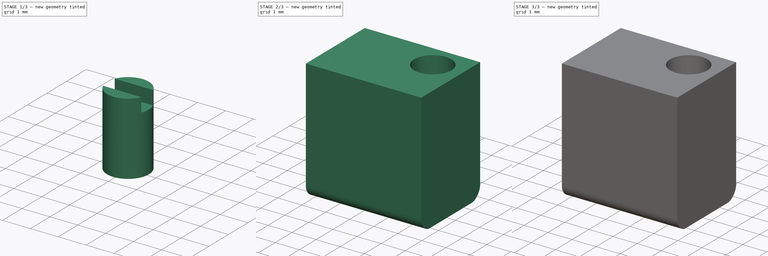
[diagram: build sequence overview — one tinted view per stage of 3, left to right]
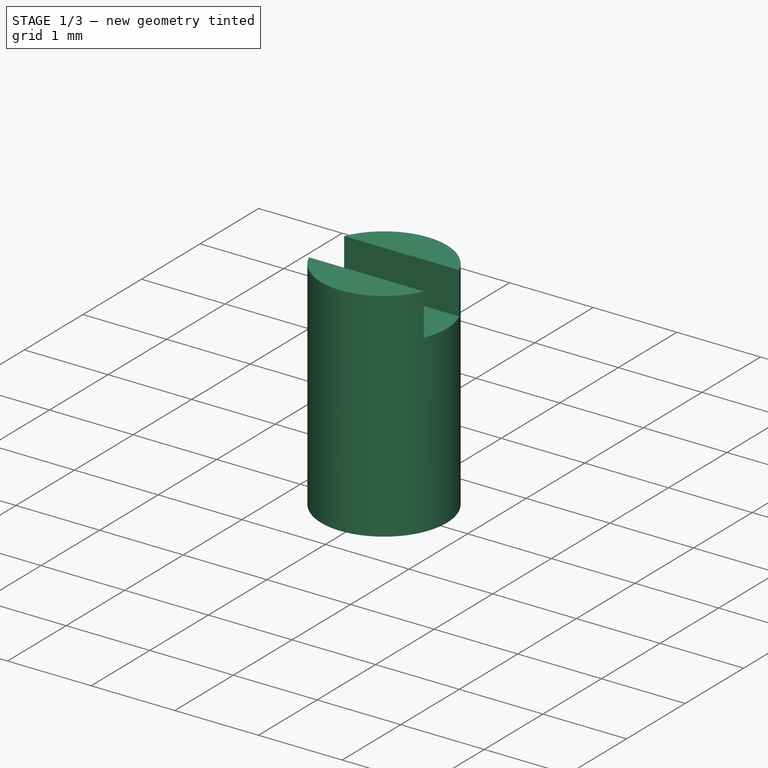
[diagram: stage 1 of 3 — iso view after this stage's code; geometry added in this stage tinted green]
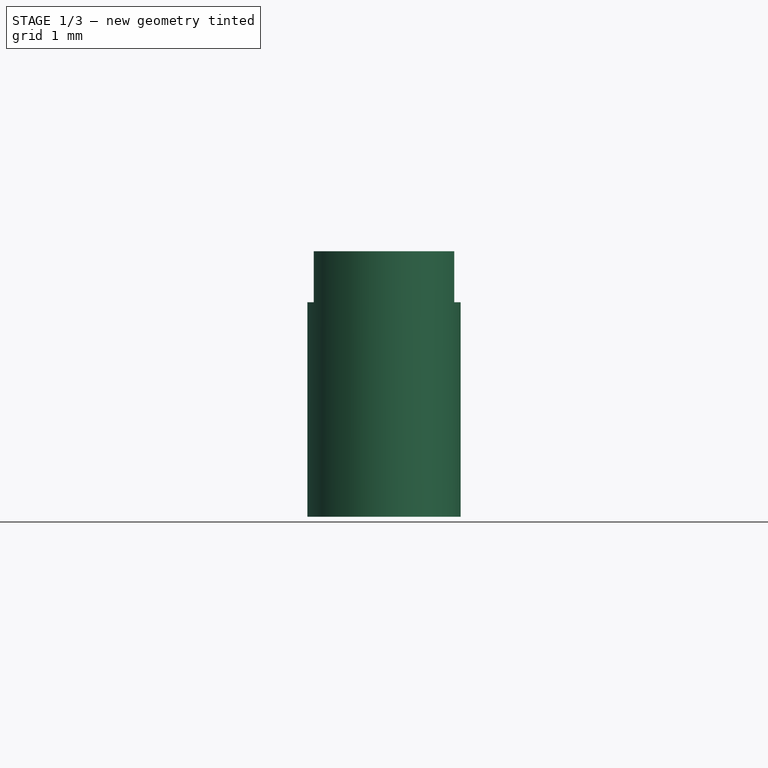
[diagram: stage 1 of 3 — front view after this stage's code; geometry added in this stage tinted green]
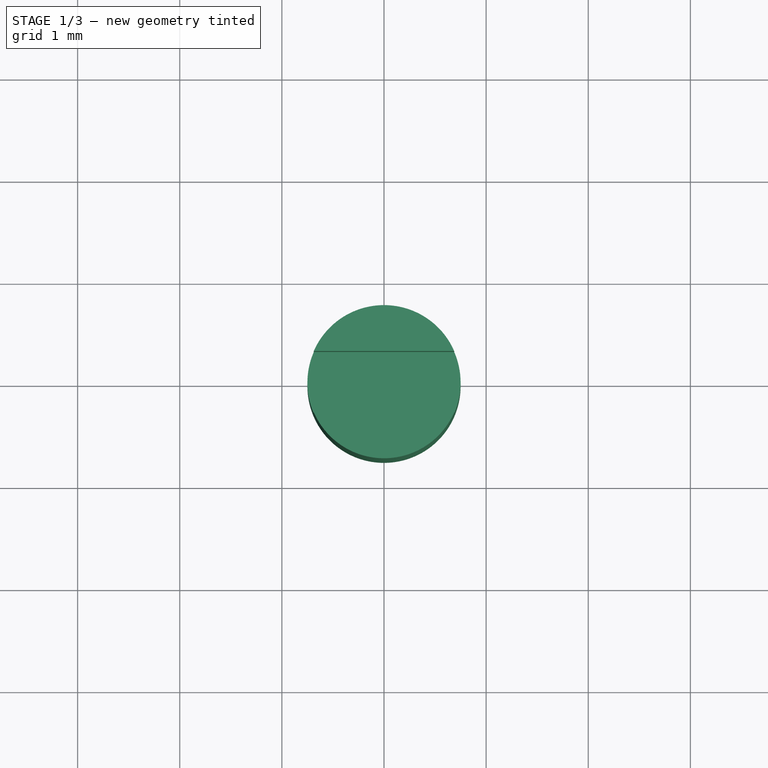
[diagram: stage 1 of 3 — top view after this stage's code; geometry added in this stage tinted green]
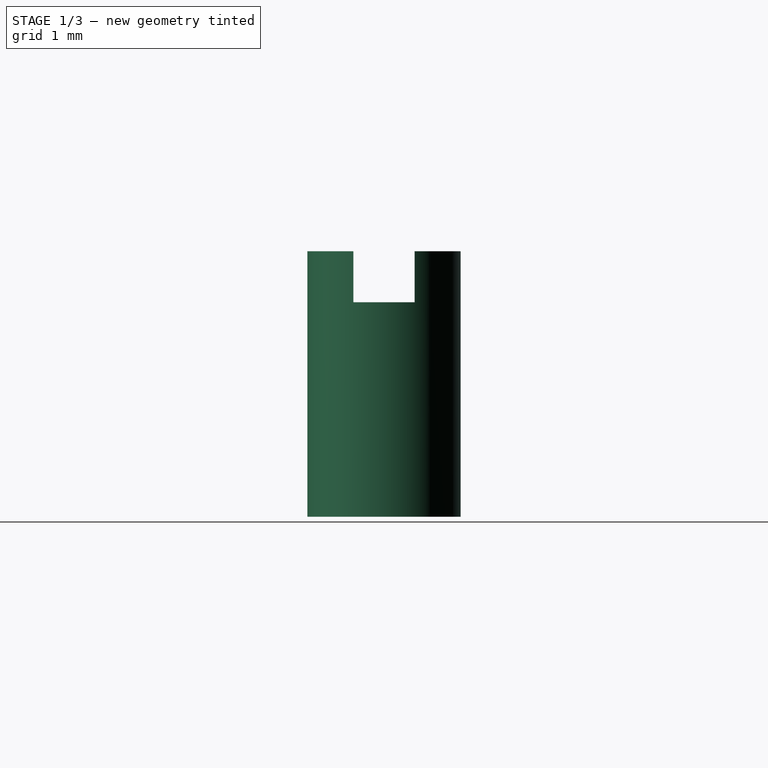
[diagram: stage 1 of 3 — right view after this stage's code; geometry added in this stage tinted green]
FCSTD DOCUMENT  (FreeCAD 0.19R24291 (Git))
Label: bourns-3214W-trimpot-trimming-potentiometer
License: All rights reserved
LicenseURL: http://en.wikipedia.org/wiki/All_rights_reserved
objects: Sketcher::SketchObject×7, PartDesign::Pad×5, PartDesign::Body×5, PartDesign::Pocket×2, App::Part×1
note: 26 computed .brp shape members not serialized (recipe doc carries the construction recipe); baked Part::Feature solids carry a one-line shape summary decoded from their .brp

FEATURE [PartDesign::Body] Body003  label="body-3214W"
  Group = -> [Sketch003,Pad003,Sketch004,Pocket]
  Origin = -> Origin004
  Placement = pos=(-2.4,0,0.2) rot=(0,0,1;0rad)
  Tip = -> Pocket
FEATURE [Sketcher::SketchObject] Sketch005
  FullyConstrained = true
  MapMode = 5
  Support = -> [XY_Plane005]
  sketch-geometry (1):
    g0: Circle CenterX=0 CenterY=0 CenterZ=0 NormalX=0 NormalY=0 NormalZ=1 AngleXU=0 Radius=0.75
  constraints (2):
    c: Coincident(g0,g-1)
    c: Diameter(g0) = 1.5
FEATURE [PartDesign::Pad] Pad004
  Direction = (1,1,1)
  Length = 2.6
  Length2 = 100
  Profile = -> Sketch005
  Type = 0
FEATURE [Sketcher::SketchObject] Sketch006
  FullyConstrained = true
  MapMode = 5
  Placement = pos=(0,0,2.6) rot=(0,0,1;0rad)
  Support = -> [Pad004]
  sketch-geometry (4):
    g0: LineSegment StartX=-5 StartY=0.3 StartZ=0 EndX=5 EndY=0.3 EndZ=0
    g1: LineSegment StartX=5 StartY=0.3 StartZ=0 EndX=5 EndY=-0.3 EndZ=0
    g2: LineSegment StartX=5 StartY=-0.3 StartZ=0 EndX=-5 EndY=-0.3 EndZ=0
    g3: LineSegment StartX=-5 StartY=-0.3 StartZ=0 EndX=-5 EndY=0.3 EndZ=0
  constraints (10):
    c: Coincident(g0,g1)
    c: Coincident(g1,g2)
    c: Coincident(g2,g3)
    c: Coincident(g3,g0)
    c: Horizontal(g2)
    c: Vertical(g1)
    c: Symmetric(g0,g2,g-1)
    c: Symmetric(g0,g0,g-2)
    c: DistanceY(g1,g0) = 0.6
    c: DistanceX(g2,g1) = 10
FEATURE [PartDesign::Pocket] Pocket001
  BaseFeature = -> Pad004
  Length = 0.5
  Length2 = 100
  Profile = -> Sketch006
  Type = 0
FEATURE [PartDesign::Body] Body004  label="adjust-screw"
  Group = -> [Sketch005,Pad004,Sketch006,Pocket001]
  Origin = -> Origin005
  Placement = pos=(1.2,0.65,3.2) rot=(0,0,1;0rad)
  Tip = -> Pocket001
FEATURE [App::Part] Part  label="assembly"
  Group = -> [Body,Body002,Body001,Body003,Body004]
  Origin = -> Origin
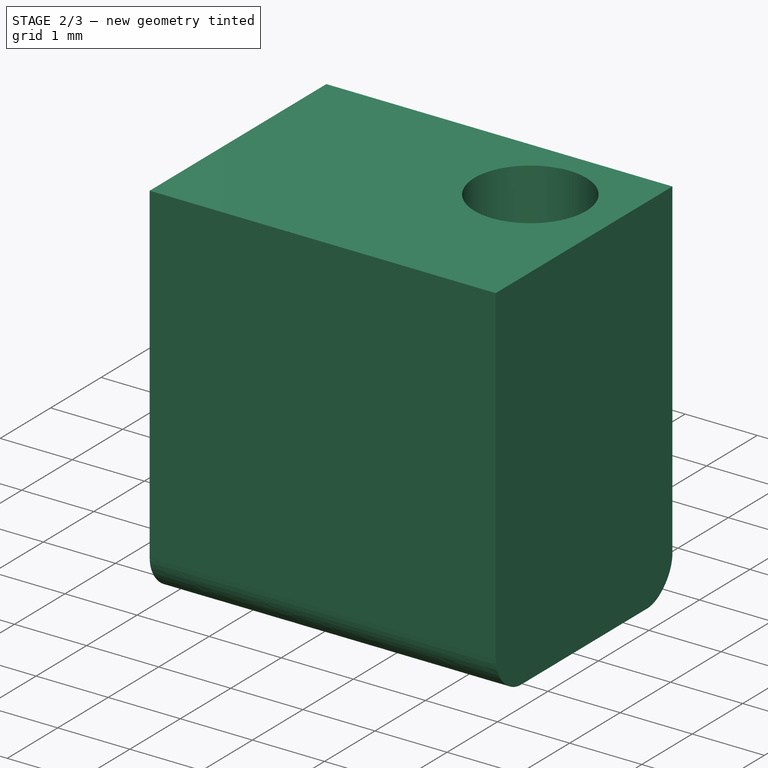
[diagram: stage 2 of 3 — iso view after this stage's code; geometry added in this stage tinted green]
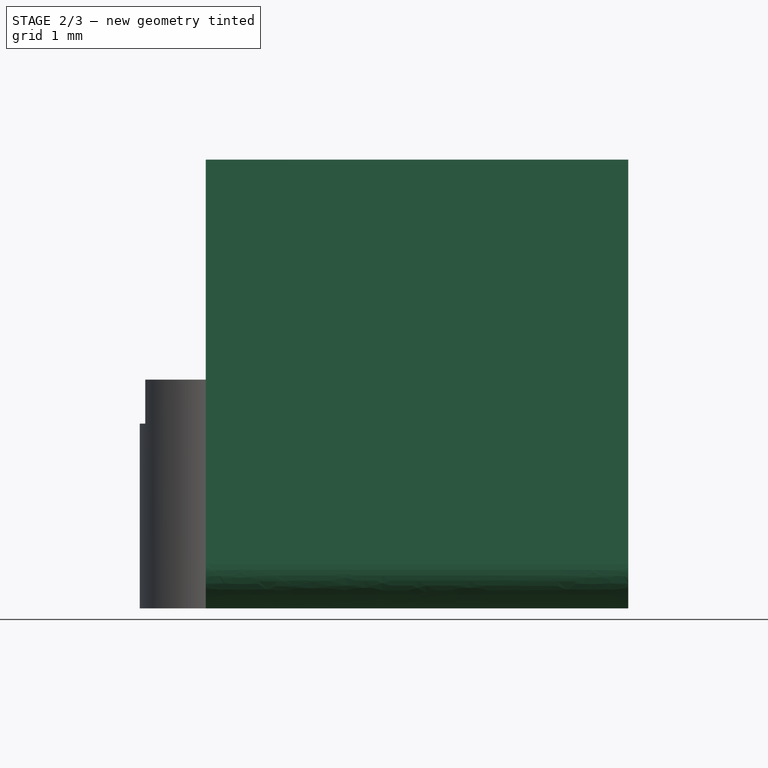
[diagram: stage 2 of 3 — front view after this stage's code; geometry added in this stage tinted green]
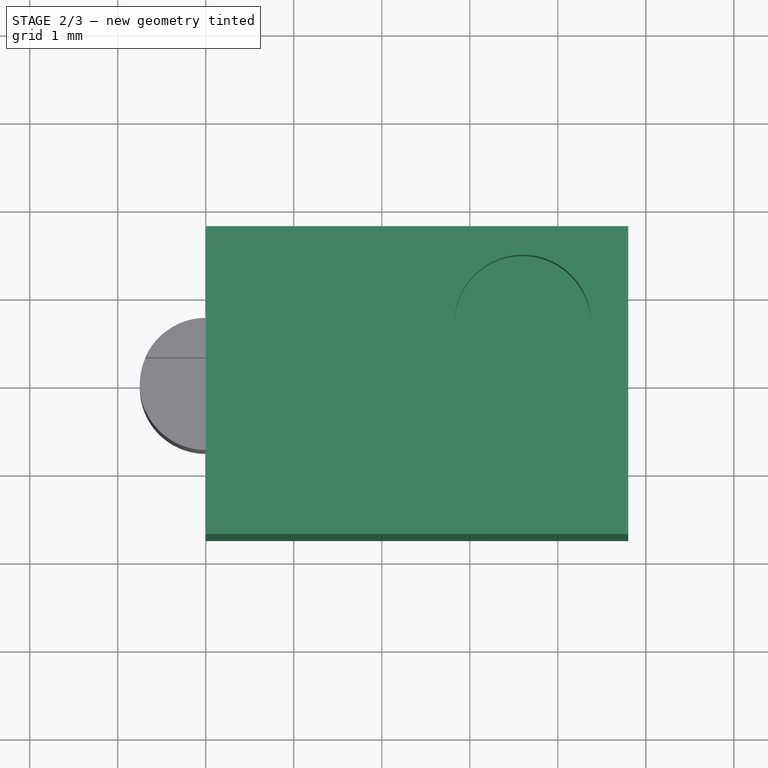
[diagram: stage 2 of 3 — top view after this stage's code; geometry added in this stage tinted green]
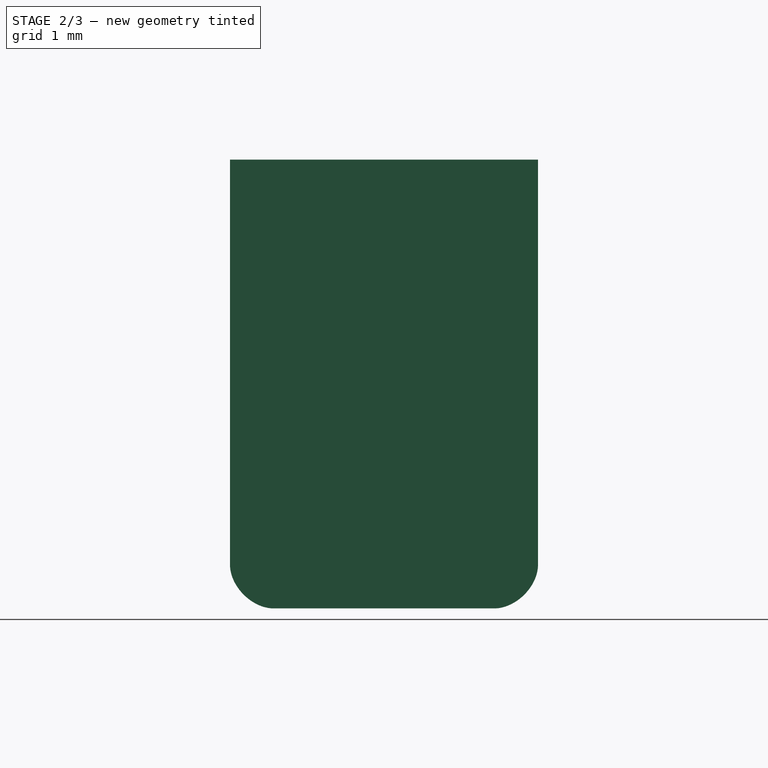
[diagram: stage 2 of 3 — right view after this stage's code; geometry added in this stage tinted green]
FEATURE [PartDesign::Body] Body001  label="contact-2"
  Group = -> [Pad001,Sketch001]
  Origin = -> Origin002
  Placement = pos=(0.65,0.95,0) rot=(0,0,1;3.14159rad)
  Tip = -> Pad001
FEATURE [Sketcher::SketchObject] Sketch002
  FullyConstrained = false
  MapMode = 5
  Placement = pos=(0,0,0) rot=(0.57735,0.57735,0.57735;2.0944rad)
  Support = -> [YZ_Plane003]
  sketch-geometry (36):
    g0: LineSegment StartX=-0.75 StartY=0.1 StartZ=0 EndX=0 EndY=0.1 EndZ=0
    g1: LineSegment StartX=0 StartY=0.1 StartZ=0 EndX=0 EndY=0 EndZ=0
    g2: LineSegment StartX=0 StartY=0 StartZ=0 EndX=-0.75 EndY=0 EndZ=0
    g3-g6: Circle x4 (B-spline internal-alignment scaffolding for g7; pole/knot coordinates omitted)
    g7: BSplineCurve PolesCount=4 KnotsCount=2 Degree=3 IsPeriodic=0
    g8: GeomPoint X=-0.75 Y=0 Z=0
    g9: GeomPoint X=-1 Y=0.25 Z=0
    g10: LineSegment StartX=-1 StartY=0.25 StartZ=0 EndX=-1 EndY=0.65 EndZ=0
    g11-g14: Circle x4 (B-spline internal-alignment scaffolding for g15; pole/knot coordinates omitted)
    g15: BSplineCurve PolesCount=4 KnotsCount=2 Degree=3 IsPeriodic=0
    g16: GeomPoint X=-0.75 Y=0.1 Z=0
    g17: GeomPoint X=-0.9 Y=0.25 Z=0
    g18: LineSegment StartX=-0.9 StartY=0.25 StartZ=0 EndX=-0.9 EndY=0.65 EndZ=0
    g19-g22: Circle x4 (B-spline internal-alignment scaffolding for g23; pole/knot coordinates omitted)
    g23: BSplineCurve PolesCount=4 KnotsCount=2 Degree=3 IsPeriodic=0
    g24: GeomPoint X=-0.9 Y=0.65 Z=0
    g25: GeomPoint X=-0.85 Y=0.7 Z=0
    g26: Circle CenterX=-1 CenterY=0.65 CenterZ=0 NormalX=0 NormalY=0 NormalZ=1 AngleXU=0 Radius=1
    g27: Circle CenterX=-1 CenterY=0.725 CenterZ=0 NormalX=0 NormalY=0 NormalZ=1 AngleXU=0 Radius=1
    g28: Circle CenterX=-0.925 CenterY=0.8 CenterZ=0 NormalX=0 NormalY=0 NormalZ=1 AngleXU=0 Radius=1
    g29: Circle CenterX=-0.333611 CenterY=0.651223 CenterZ=0 NormalX=0 NormalY=0 NormalZ=1 AngleXU=0 Radius=1
    g30: BSplineCurve PolesCount=4 KnotsCount=2 Degree=3 IsPeriodic=0
    g31: GeomPoint X=-1 Y=0.65 Z=0
    g32: GeomPoint X=-0.85 Y=0.8 Z=0
    g33: LineSegment StartX=-0.85 StartY=0.8 StartZ=0 EndX=-0.6 EndY=0.8 EndZ=0
    g34: LineSegment StartX=-0.6 StartY=0.8 StartZ=0 EndX=-0.6 EndY=0.7 EndZ=0
    g35: LineSegment StartX=-0.6 StartY=0.7 StartZ=0 EndX=-0.85 EndY=0.7 EndZ=0
  constraints (81):
    c: Coincident(g1,g0)
    c: Coincident(g2,g1)
    c: Coincident(g7,g2)
    c: Weight(g3) = 1
    c: Equal(g3,g4)
    c: Equal(g3,g5)
    c: Equal(g3,g6)
    c: InternalAlignment(g3-g6 -> g7) x4
    c: InternalAlignment(g8,g7)
    c: InternalAlignment(g9,g7)
    c: Coincident(g10,g7)
    c: Vertical(g10)
    c: Coincident(g15,g0)
    c: Weight(g11) = 1
    c: Equal(g11,g12)
    c: Equal(g11,g13)
    c: Equal(g11,g14)
    c: InternalAlignment(g11-g14 -> g15) x4
    c: InternalAlignment(g16,g15)
    c: InternalAlignment(g17,g15)
    c: Coincident(g18,g15)
    c: Vertical(g18)
    c: Coincident(g23,g18)
    c: Weight(g19) = 1
    c: Equal(g19,g20)
    c: Equal(g19,g21)
    c: Equal(g19,g22)
    c: InternalAlignment(g19-g22 -> g23) x4
    c: InternalAlignment(g24,g23)
    c: InternalAlignment(g25,g23)
    c: Coincident(g30,g10)
    c: Weight(g26) = 1
    c: Equal(g26,g27)
    c: Equal(g26,g28)
    c: Equal(g26,g29)
    c: InternalAlignment(g26,g30)
    c: InternalAlignment(g27,g30)
    c: InternalAlignment(g28,g30)
    c: InternalAlignment(g31,g30)
    c: InternalAlignment(g32,g30)
    c: Coincident(g33,g30)
    c: Coincident(g34,g33)
    c: Coincident(g35,g34)
    c: Coincident(g35,g23)
    c: DistanceX(g7,g15) = 0.1
    c: Horizontal(g0)
    c: Horizontal(g2)
    c: Vertical(g1)
    c: Horizontal(g33)
    c: Horizontal(g35)
    c: Vertical(g34)
    c: Distance(g33,g34) = 0.1
    c: Distance(g0,g1) = 0.1
    c: Coincident(g1,g-1)
    c: Horizontal(g4,g2)
    c: Vertical(g7,g5)
    c: Horizontal(g12,g0)
    c: Vertical(g13,g15)
    c: Vertical(g18,g20)
    c: Horizontal(g21,g23)
    c: Vertical(g27,g10)
    c: Horizontal(g28,g30)
    c: DistanceX(g7,g-1) = 1
    c: DistanceY(g-1,g33) = 0.8
    c: DistanceY(g-1,g7) = 0.25
    c: DistanceX(g7,g2) = 0.25
    c: Distance(g4,g2) = 0.125
    c: DistanceY(g5,g7) = 0.125
    c: Vertical(g0,g2)
    c: Horizontal(g15,g7)
    c: DistanceY(g13,g15) = 0.075
    c: DistanceX(g12,g0) = 0.075
    c: DistanceY(g10,g27) = 0.075
    c: Horizontal(g10,g18)
    c: DistanceY(g18,g20) = 0.025
    c: DistanceX(g21,g23) = 0.025
    c: DistanceX(g28,g30) = 0.075
    c: Vertical(g23,g30)
    c: DistanceX(g10,g30) = 0.15
    c: DistanceY(g10,g30) = 0.15
    c: DistanceX(g34,g-1) = 0.6
FEATURE [PartDesign::Pad] Pad002
  Direction = (1,1,1)
  Length = 0.8
  Length2 = 100
  Placement = pos=(0,0,0) rot=(0.57735,0.57735,0.57735;2.0944rad)
  Profile = -> Sketch002
  Type = 0
FEATURE [PartDesign::Body] Body002  label="contact-3"
  Group = -> [Pad002,Sketch002]
  Origin = -> Origin003
  Placement = pos=(0.85,-0.95,0) rot=(0,0,1;0rad)
  Tip = -> Pad002
FEATURE [Sketcher::SketchObject] Sketch003
  FullyConstrained = false
  MapMode = 5
  Placement = pos=(0,0,0) rot=(0.57735,0.57735,0.57735;2.0944rad)
  Support = -> [YZ_Plane004]
  sketch-geometry (14):
    g0: LineSegment StartX=-1.75 StartY=0.5 StartZ=0 EndX=-1.75 EndY=5.1 EndZ=0
    g1: LineSegment StartX=-1.75 StartY=5.1 StartZ=0 EndX=1.75 EndY=5.1 EndZ=0
    g2-g5: Circle x4 (B-spline internal-alignment scaffolding for g6; pole/knot coordinates omitted)
    g6: BSplineCurve PolesCount=4 KnotsCount=2 Degree=3 IsPeriodic=0
    g7-g10: Circle x4 (B-spline internal-alignment scaffolding for g11; pole/knot coordinates omitted)
    g11: BSplineCurve PolesCount=4 KnotsCount=2 Degree=3 IsPeriodic=0
    g12: LineSegment StartX=-1.25 StartY=0 StartZ=0 EndX=1.25 EndY=0 EndZ=0
    g13: LineSegment StartX=1.75 StartY=5.1 StartZ=0 EndX=1.75 EndY=0.5 EndZ=0
  constraints (33):
    c: Vertical(g0)
    c: Coincident(g1,g0)
    c: Horizontal(g1)
    c: Weight(g2) = 1
    c: Equal(g2,g3)
    c: Equal(g2,g4)
    c: Equal(g2,g5)
    c: InternalAlignment(g2-g5 -> g6) x4
    c: Coincident(g11,g0)
    c: Weight(g7) = 1
    c: Equal(g7,g8)
    c: Equal(g7,g9)
    c: Equal(g7,g10)
    c: InternalAlignment(g7-g10 -> g11) x4
    c: DistanceY(g11,g0) = 5.1
    c: Vertical(g6,g3)
    c: DistanceX(g0,g1) = 3.5
    c: DistanceY(g11,g0) = 0.5
    c: Horizontal(g0,g6)
    c: DistanceY(g6,g3) = -0.25
    c: DistanceY(g0,g8) = -0.25
    c: Vertical(g8,g0)
    c: DistanceX(g9,g11) = 0.25
    c: DistanceX(g11,g6) = 2.5
    c: Symmetric(g11,g6,g-2)
    c: DistanceX(g6,g4) = 0.25
    c: Coincident(g12,g11)
    c: Coincident(g12,g6)
    c: Coincident(g13,g1)
    c: Coincident(g13,g6)
    c: Vertical(g13)
    c: DistanceX(g0,g-1) = 1.75
    c: DistanceY(g11,g-1) = 0
FEATURE [PartDesign::Pad] Pad003
  Direction = (1,1,1)
  Length = 4.8
  Length2 = 100
  Placement = pos=(0,0,0) rot=(0.57735,0.57735,0.57735;2.0944rad)
  Profile = -> Sketch003
  Type = 0
FEATURE [Sketcher::SketchObject] Sketch004
  FullyConstrained = true
  MapMode = 5
  Placement = pos=(-2e-15,2.8e-15,5.1) rot=(0,0,-1;1.5708rad)
  Support = -> [Pad003]
  sketch-geometry (1):
    g0: Circle CenterX=-0.65 CenterY=3.6 CenterZ=0 NormalX=0 NormalY=0 NormalZ=1 AngleXU=0 Radius=0.775
  constraints (3):
    c: DistanceX(g-1,g0) = -0.65
    c: DistanceY(g-1,g0) = 3.6
    c: Diameter(g0) = 1.55
FEATURE [PartDesign::Pocket] Pocket
  BaseFeature = -> Pad003
  Length = 1
  Length2 = 100
  Placement = pos=(0,0,0) rot=(0.57735,0.57735,0.57735;2.0944rad)
  Profile = -> Sketch004
  Type = 0
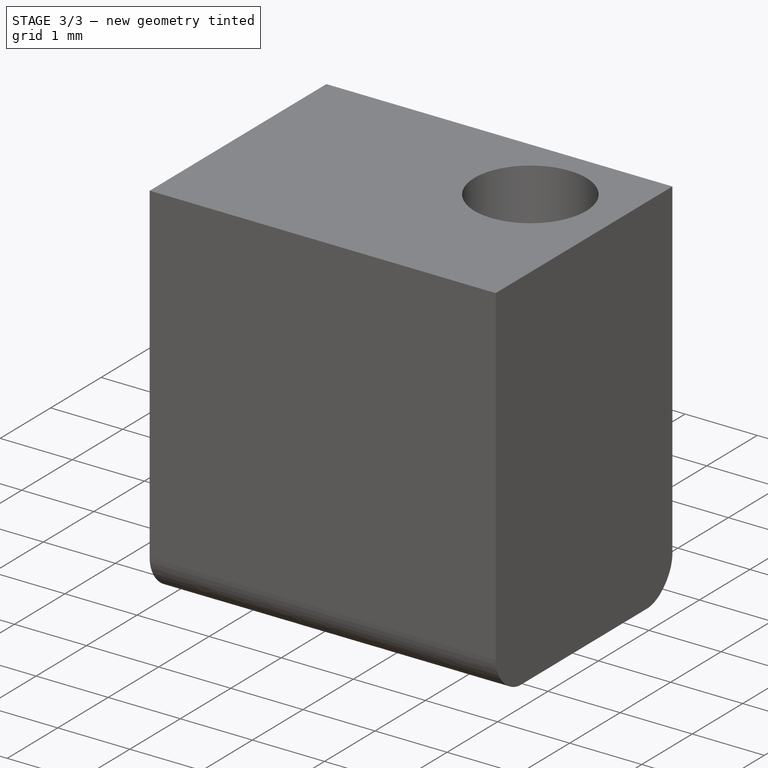
[diagram: stage 3 of 3 — iso view after this stage's code; geometry added in this stage tinted green]
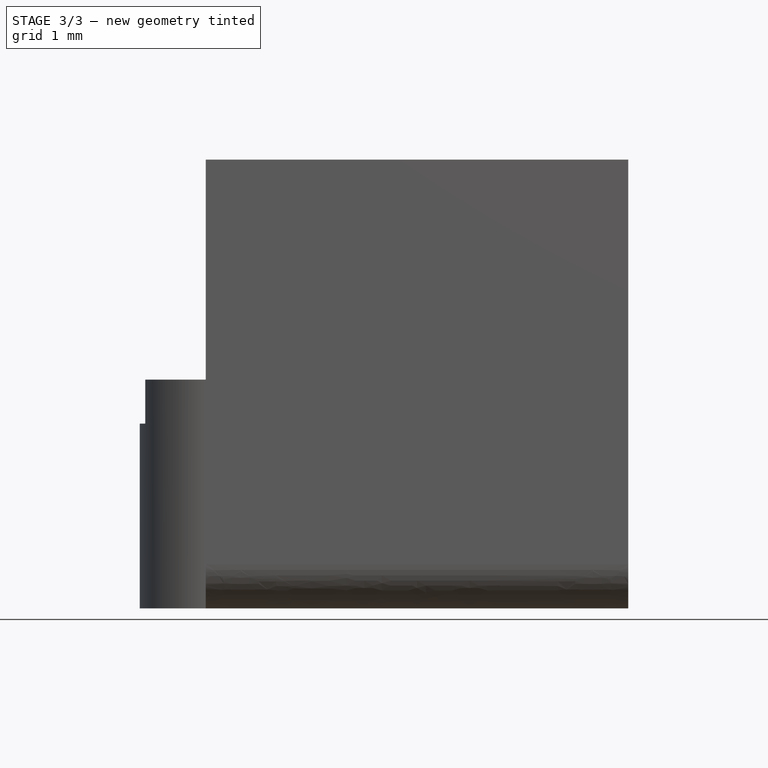
[diagram: stage 3 of 3 — front view after this stage's code; geometry added in this stage tinted green]
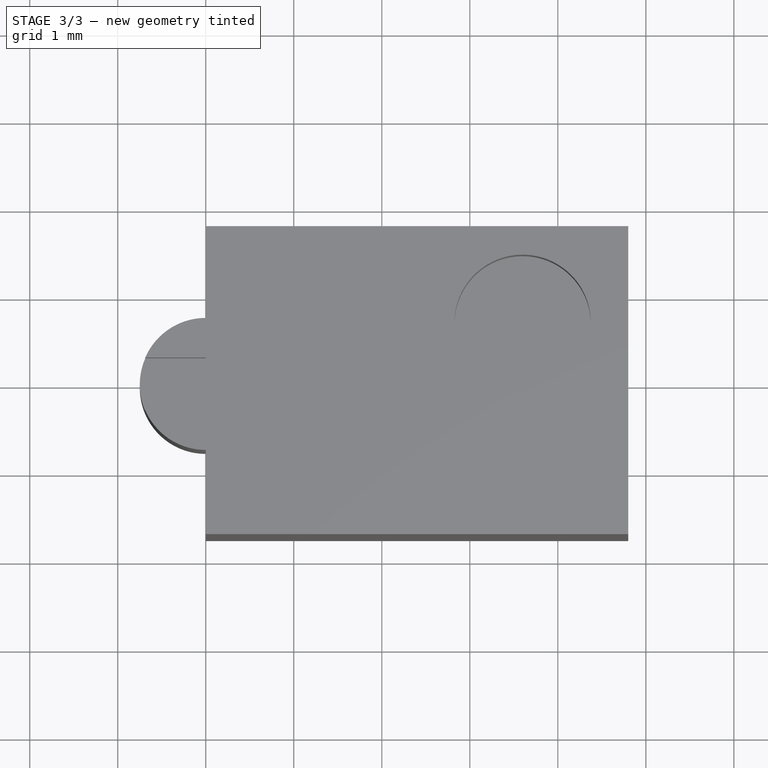
[diagram: stage 3 of 3 — top view after this stage's code; geometry added in this stage tinted green]
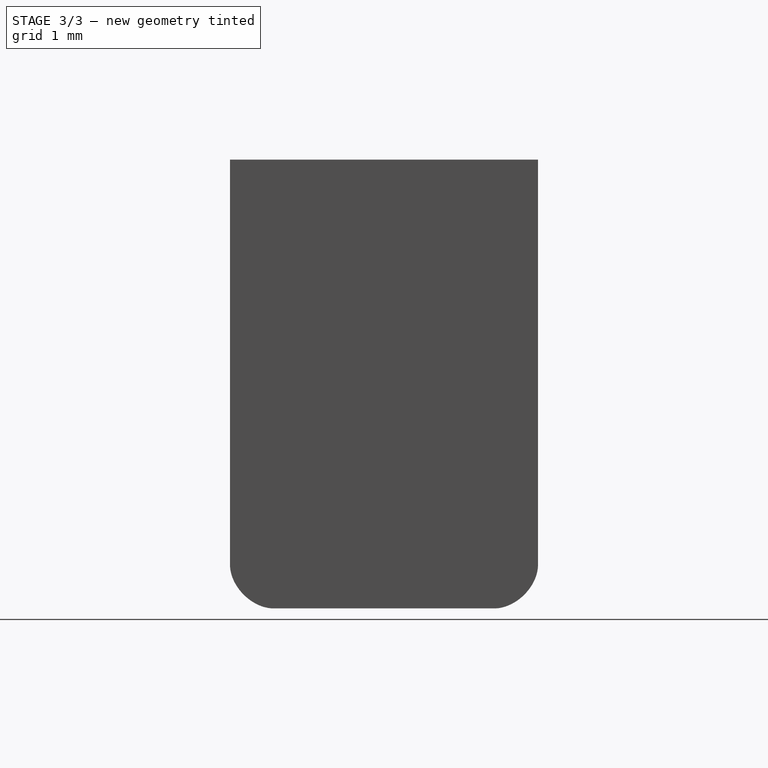
[diagram: stage 3 of 3 — right view after this stage's code; geometry added in this stage tinted green]
FEATURE [Sketcher::SketchObject] Sketch
  FullyConstrained = false
  MapMode = 5
  Placement = pos=(0,0,0) rot=(0.57735,0.57735,0.57735;2.0944rad)
  Support = -> [YZ_Plane001]
  sketch-geometry (36):
    g0: LineSegment StartX=-0.75 StartY=0.1 StartZ=0 EndX=0 EndY=0.1 EndZ=0
    g1: LineSegment StartX=0 StartY=0.1 StartZ=0 EndX=0 EndY=0 EndZ=0
    g2: LineSegment StartX=0 StartY=0 StartZ=0 EndX=-0.75 EndY=0 EndZ=0
    g3-g6: Circle x4 (B-spline internal-alignment scaffolding for g7; pole/knot coordinates omitted)
    g7: BSplineCurve PolesCount=4 KnotsCount=2 Degree=3 IsPeriodic=0
    g8: GeomPoint X=-0.75 Y=0 Z=0
    g9: GeomPoint X=-1 Y=0.25 Z=0
    g10: LineSegment StartX=-1 StartY=0.25 StartZ=0 EndX=-1 EndY=0.65 EndZ=0
    g11-g14: Circle x4 (B-spline internal-alignment scaffolding for g15; pole/knot coordinates omitted)
    g15: BSplineCurve PolesCount=4 KnotsCount=2 Degree=3 IsPeriodic=0
    g16: GeomPoint X=-0.75 Y=0.1 Z=0
    g17: GeomPoint X=-0.9 Y=0.25 Z=0
    g18: LineSegment StartX=-0.9 StartY=0.25 StartZ=0 EndX=-0.9 EndY=0.65 EndZ=0
    g19-g22: Circle x4 (B-spline internal-alignment scaffolding for g23; pole/knot coordinates omitted)
    g23: BSplineCurve PolesCount=4 KnotsCount=2 Degree=3 IsPeriodic=0
    g24: GeomPoint X=-0.9 Y=0.65 Z=0
    g25: GeomPoint X=-0.85 Y=0.7 Z=0
    g26: Circle CenterX=-1 CenterY=0.65 CenterZ=0 NormalX=0 NormalY=0 NormalZ=1 AngleXU=0 Radius=1
    g27: Circle CenterX=-1 CenterY=0.725 CenterZ=0 NormalX=0 NormalY=0 NormalZ=1 AngleXU=0 Radius=1
    g28: Circle CenterX=-0.925 CenterY=0.8 CenterZ=0 NormalX=0 NormalY=0 NormalZ=1 AngleXU=0 Radius=1
    g29: Circle CenterX=-0.333611 CenterY=0.651223 CenterZ=0 NormalX=0 NormalY=0 NormalZ=1 AngleXU=0 Radius=1
    g30: BSplineCurve PolesCount=4 KnotsCount=2 Degree=3 IsPeriodic=0
    g31: GeomPoint X=-1 Y=0.65 Z=0
    g32: GeomPoint X=-0.85 Y=0.8 Z=0
    g33: LineSegment StartX=-0.85 StartY=0.8 StartZ=0 EndX=-0.6 EndY=0.8 EndZ=0
    g34: LineSegment StartX=-0.6 StartY=0.8 StartZ=0 EndX=-0.6 EndY=0.7 EndZ=0
    g35: LineSegment StartX=-0.6 StartY=0.7 StartZ=0 EndX=-0.85 EndY=0.7 EndZ=0
  constraints (81):
    c: Coincident(g1,g0)
    c: Coincident(g2,g1)
    c: Coincident(g7,g2)
    c: Weight(g3) = 1
    c: Equal(g3,g4)
    c: Equal(g3,g5)
    c: Equal(g3,g6)
    c: InternalAlignment(g3-g6 -> g7) x4
    c: InternalAlignment(g8,g7)
    c: InternalAlignment(g9,g7)
    c: Coincident(g10,g7)
    c: Vertical(g10)
    c: Coincident(g15,g0)
    c: Weight(g11) = 1
    c: Equal(g11,g12)
    c: Equal(g11,g13)
    c: Equal(g11,g14)
    c: InternalAlignment(g11-g14 -> g15) x4
    c: InternalAlignment(g16,g15)
    c: InternalAlignment(g17,g15)
    c: Coincident(g18,g15)
    c: Vertical(g18)
    c: Coincident(g23,g18)
    c: Weight(g19) = 1
    c: Equal(g19,g20)
    c: Equal(g19,g21)
    c: Equal(g19,g22)
    c: InternalAlignment(g19-g22 -> g23) x4
    c: InternalAlignment(g24,g23)
    c: InternalAlignment(g25,g23)
    c: Coincident(g30,g10)
    c: Weight(g26) = 1
    c: Equal(g26,g27)
    c: Equal(g26,g28)
    c: Equal(g26,g29)
    c: InternalAlignment(g26,g30)
    c: InternalAlignment(g27,g30)
    c: InternalAlignment(g28,g30)
    c: InternalAlignment(g31,g30)
    c: InternalAlignment(g32,g30)
    c: Coincident(g33,g30)
    c: Coincident(g34,g33)
    c: Coincident(g35,g34)
    c: Coincident(g35,g23)
    c: DistanceX(g7,g15) = 0.1
    c: Horizontal(g0)
    c: Horizontal(g2)
    c: Vertical(g1)
    c: Horizontal(g33)
    c: Horizontal(g35)
    c: Vertical(g34)
    c: Distance(g33,g34) = 0.1
    c: Distance(g0,g1) = 0.1
    c: Coincident(g1,g-1)
    c: Horizontal(g4,g2)
    c: Vertical(g7,g5)
    c: Horizontal(g12,g0)
    c: Vertical(g13,g15)
    c: Vertical(g18,g20)
    c: Horizontal(g21,g23)
    c: Vertical(g27,g10)
    c: Horizontal(g28,g30)
    c: DistanceX(g7,g-1) = 1
    c: DistanceY(g-1,g33) = 0.8
    c: DistanceY(g-1,g7) = 0.25
    c: DistanceX(g7,g2) = 0.25
    c: Distance(g4,g2) = 0.125
    c: DistanceY(g5,g7) = 0.125
    c: Vertical(g0,g2)
    c: Horizontal(g15,g7)
    c: DistanceY(g13,g15) = 0.075
    c: DistanceX(g12,g0) = 0.075
    c: DistanceY(g10,g27) = 0.075
    c: Horizontal(g10,g18)
    c: DistanceY(g18,g20) = 0.025
    c: DistanceX(g21,g23) = 0.025
    c: DistanceX(g28,g30) = 0.075
    c: Vertical(g23,g30)
    c: DistanceX(g10,g30) = 0.15
    c: DistanceY(g10,g30) = 0.15
    c: DistanceX(g34,g-1) = 0.6
FEATURE [PartDesign::Pad] Pad
  Direction = (1,1,1)
  Length = 0.8
  Length2 = 100
  Placement = pos=(0,0,0) rot=(0.57735,0.57735,0.57735;2.0944rad)
  Profile = -> Sketch
  Type = 0
FEATURE [PartDesign::Body] Body  label="contact-1"
  Group = -> [Pad,Sketch]
  Origin = -> Origin001
  Placement = pos=(-1.65,-0.95,0) rot=(0,0,1;0rad)
  Tip = -> Pad
FEATURE [Sketcher::SketchObject] Sketch001
  FullyConstrained = false
  MapMode = 5
  Placement = pos=(0,0,0) rot=(0.57735,0.57735,0.57735;2.0944rad)
  Support = -> [YZ_Plane002]
  sketch-geometry (36):
    g0: LineSegment StartX=-0.75 StartY=0.1 StartZ=0 EndX=0 EndY=0.1 EndZ=0
    g1: LineSegment StartX=0 StartY=0.1 StartZ=0 EndX=0 EndY=0 EndZ=0
    g2: LineSegment StartX=0 StartY=0 StartZ=0 EndX=-0.75 EndY=0 EndZ=0
    g3-g6: Circle x4 (B-spline internal-alignment scaffolding for g7; pole/knot coordinates omitted)
    g7: BSplineCurve PolesCount=4 KnotsCount=2 Degree=3 IsPeriodic=0
    g8: GeomPoint X=-0.75 Y=0 Z=0
    g9: GeomPoint X=-1 Y=0.25 Z=0
    g10: LineSegment StartX=-1 StartY=0.25 StartZ=0 EndX=-1 EndY=0.65 EndZ=0
    g11-g14: Circle x4 (B-spline internal-alignment scaffolding for g15; pole/knot coordinates omitted)
    g15: BSplineCurve PolesCount=4 KnotsCount=2 Degree=3 IsPeriodic=0
    g16: GeomPoint X=-0.75 Y=0.1 Z=0
    g17: GeomPoint X=-0.9 Y=0.25 Z=0
    g18: LineSegment StartX=-0.9 StartY=0.25 StartZ=0 EndX=-0.9 EndY=0.65 EndZ=0
    g19-g22: Circle x4 (B-spline internal-alignment scaffolding for g23; pole/knot coordinates omitted)
    g23: BSplineCurve PolesCount=4 KnotsCount=2 Degree=3 IsPeriodic=0
    g24: GeomPoint X=-0.9 Y=0.65 Z=0
    g25: GeomPoint X=-0.85 Y=0.7 Z=0
    g26: Circle CenterX=-1 CenterY=0.65 CenterZ=0 NormalX=0 NormalY=0 NormalZ=1 AngleXU=0 Radius=1
    g27: Circle CenterX=-1 CenterY=0.725 CenterZ=0 NormalX=0 NormalY=0 NormalZ=1 AngleXU=0 Radius=1
    g28: Circle CenterX=-0.925 CenterY=0.8 CenterZ=0 NormalX=0 NormalY=0 NormalZ=1 AngleXU=0 Radius=1
    g29: Circle CenterX=-0.333611 CenterY=0.651223 CenterZ=0 NormalX=0 NormalY=0 NormalZ=1 AngleXU=0 Radius=1
    g30: BSplineCurve PolesCount=4 KnotsCount=2 Degree=3 IsPeriodic=0
    g31: GeomPoint X=-1 Y=0.65 Z=0
    g32: GeomPoint X=-0.85 Y=0.8 Z=0
    g33: LineSegment StartX=-0.85 StartY=0.8 StartZ=0 EndX=-0.6 EndY=0.8 EndZ=0
    g34: LineSegment StartX=-0.6 StartY=0.8 StartZ=0 EndX=-0.6 EndY=0.7 EndZ=0
    g35: LineSegment StartX=-0.6 StartY=0.7 StartZ=0 EndX=-0.85 EndY=0.7 EndZ=0
  constraints (81):
    c: Coincident(g1,g0)
    c: Coincident(g2,g1)
    c: Coincident(g7,g2)
    c: Weight(g3) = 1
    c: Equal(g3,g4)
    c: Equal(g3,g5)
    c: Equal(g3,g6)
    c: InternalAlignment(g3-g6 -> g7) x4
    c: InternalAlignment(g8,g7)
    c: InternalAlignment(g9,g7)
    c: Coincident(g10,g7)
    c: Vertical(g10)
    c: Coincident(g15,g0)
    c: Weight(g11) = 1
    c: Equal(g11,g12)
    c: Equal(g11,g13)
    c: Equal(g11,g14)
    c: InternalAlignment(g11-g14 -> g15) x4
    c: InternalAlignment(g16,g15)
    c: InternalAlignment(g17,g15)
    c: Coincident(g18,g15)
    c: Vertical(g18)
    c: Coincident(g23,g18)
    c: Weight(g19) = 1
    c: Equal(g19,g20)
    c: Equal(g19,g21)
    c: Equal(g19,g22)
    c: InternalAlignment(g19-g22 -> g23) x4
    c: InternalAlignment(g24,g23)
    c: InternalAlignment(g25,g23)
    c: Coincident(g30,g10)
    c: Weight(g26) = 1
    c: Equal(g26,g27)
    c: Equal(g26,g28)
    c: Equal(g26,g29)
    c: InternalAlignment(g26,g30)
    c: InternalAlignment(g27,g30)
    c: InternalAlignment(g28,g30)
    c: InternalAlignment(g31,g30)
    c: InternalAlignment(g32,g30)
    c: Coincident(g33,g30)
    c: Coincident(g34,g33)
    c: Coincident(g35,g34)
    c: Coincident(g35,g23)
    c: DistanceX(g7,g15) = 0.1
    c: Horizontal(g0)
    c: Horizontal(g2)
    c: Vertical(g1)
    c: Horizontal(g33)
    c: Horizontal(g35)
    c: Vertical(g34)
    c: Distance(g33,g34) = 0.1
    c: Distance(g0,g1) = 0.1
    c: Coincident(g1,g-1)
    c: Horizontal(g4,g2)
    c: Vertical(g7,g5)
    c: Horizontal(g12,g0)
    c: Vertical(g13,g15)
    c: Vertical(g18,g20)
    c: Horizontal(g21,g23)
    c: Vertical(g27,g10)
    c: Horizontal(g28,g30)
    c: DistanceX(g7,g-1) = 1
    c: DistanceY(g-1,g33) = 0.8
    c: DistanceY(g-1,g7) = 0.25
    c: DistanceX(g7,g2) = 0.25
    c: Distance(g4,g2) = 0.125
    c: DistanceY(g5,g7) = 0.125
    c: Vertical(g0,g2)
    c: Horizontal(g15,g7)
    c: DistanceY(g13,g15) = 0.075
    c: DistanceX(g12,g0) = 0.075
    c: DistanceY(g10,g27) = 0.075
    c: Horizontal(g10,g18)
    c: DistanceY(g18,g20) = 0.025
    c: DistanceX(g21,g23) = 0.025
    c: DistanceX(g28,g30) = 0.075
    c: Vertical(g23,g30)
    c: DistanceX(g10,g30) = 0.15
    c: DistanceY(g10,g30) = 0.15
    c: DistanceX(g34,g-1) = 0.6
FEATURE [PartDesign::Pad] Pad001
  Direction = (1,1,1)
  Length = 1.3
  Length2 = 100
  Placement = pos=(0,0,0) rot=(0.57735,0.57735,0.57735;2.0944rad)
  Profile = -> Sketch001
  Type = 0
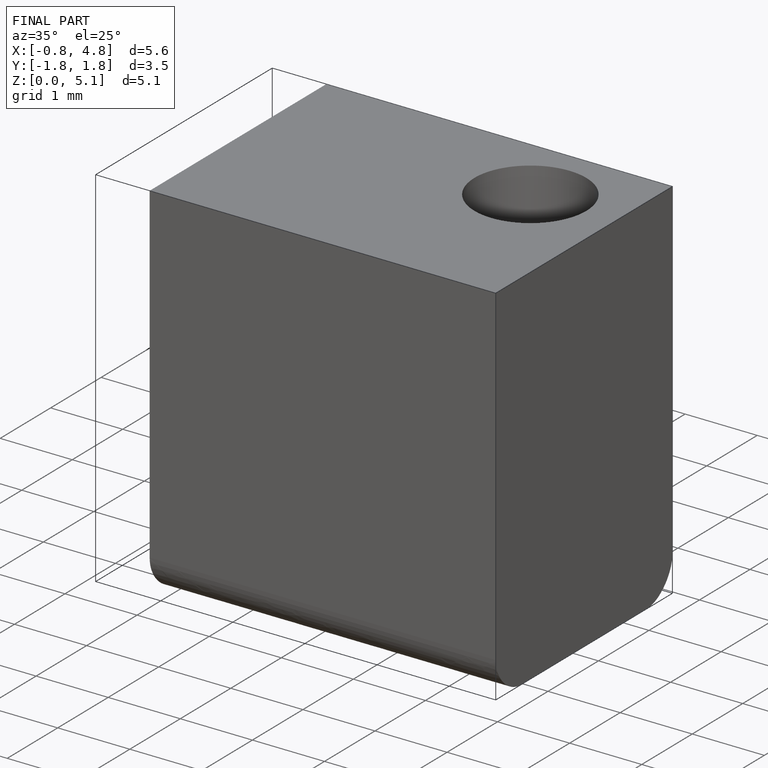
[diagram: finished part — iso view with bounding-box wireframe]
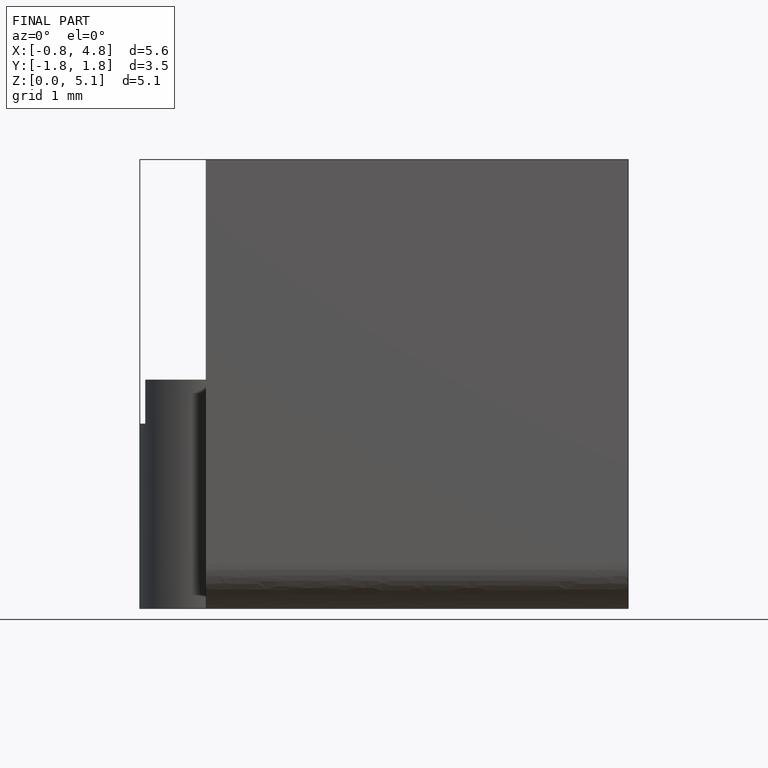
[diagram: finished part — front view with bounding-box wireframe]
